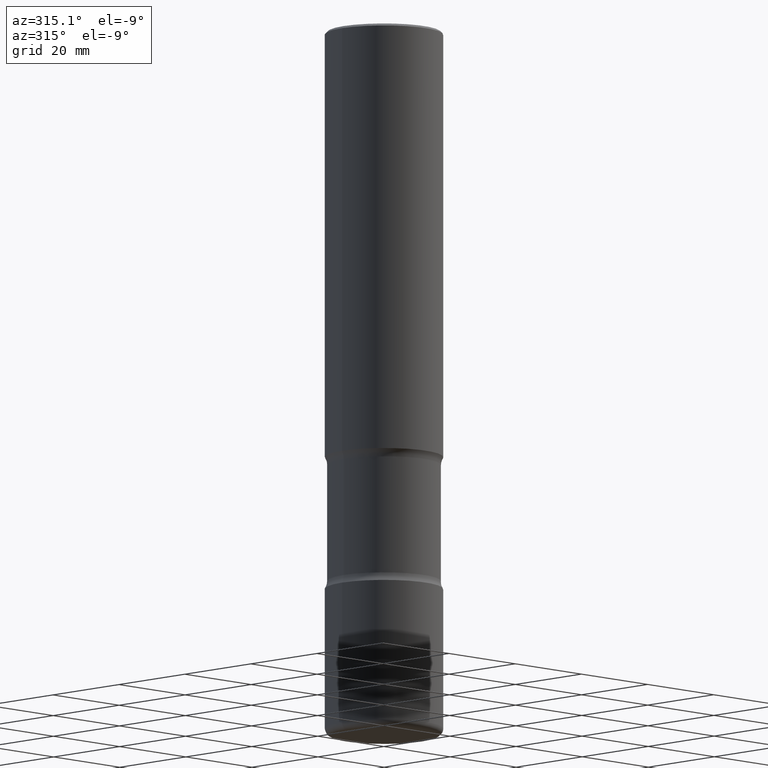
[diagram: clean part render]
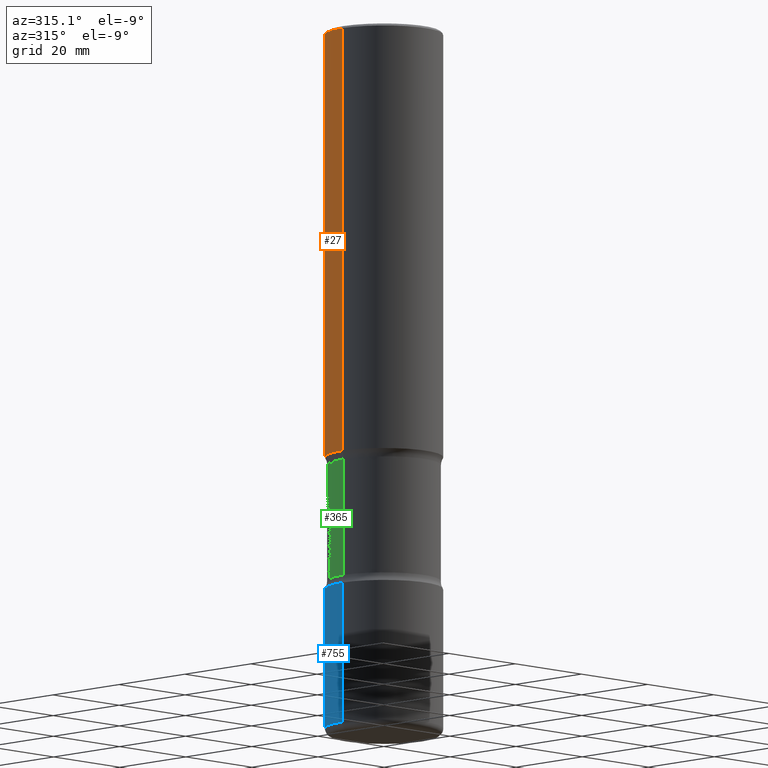
[diagram: same view with three faces highlighted in distinct colors, each labeled with its STEP entity id]
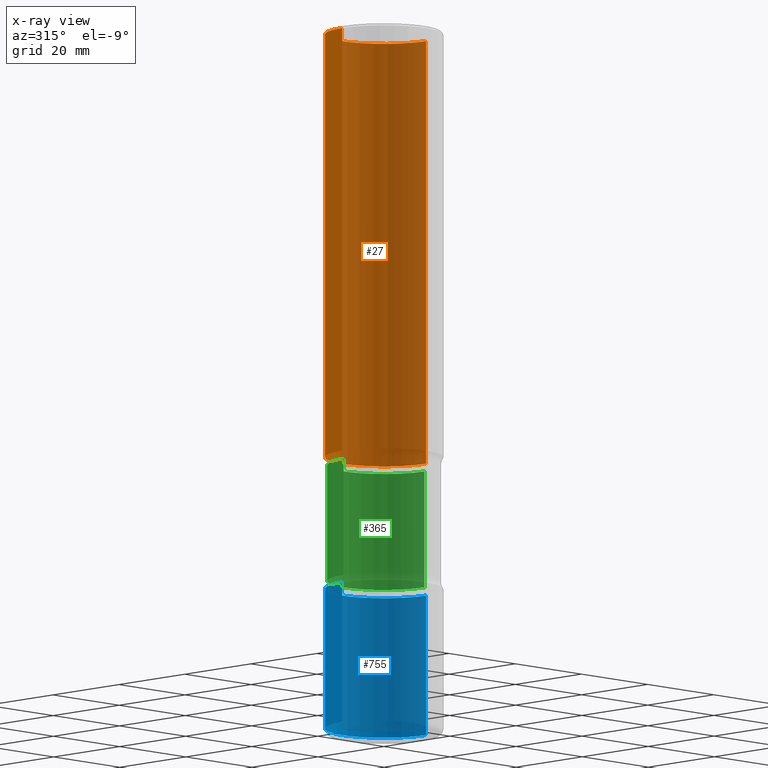
[diagram: x-ray of the same camera — body ghosted, the three highlighted faces saturated]
A machine part, auxiliary view with three faces highlighted in distinct colors.
The next image is the same camera in x-ray (body ghosted, the three faces saturated) — at least one of them is partly hidden behind the body in this view.
Their STEP definitions:

[orange] entity #27 — the highlighted cylindrical surface (partial cylindrical patch) has radius 12.7 mm, axis along (-0, 0, 1).
#27 = ADVANCED_FACE ( 'NONE', ( #154 ), #164, .T. ) ;
#55 = EDGE_CURVE ( 'NONE', #273, #332, #264, .T. ) ;
#73 = ORIENTED_EDGE ( 'NONE', *, *, #167, .T. ) ;
#74 = LINE ( 'NONE', #183, #474 ) ;
#87 = CARTESIAN_POINT ( 'NONE',  ( -0.4999999999999997224, 3.421651712066268085E-15, -0.02000000000000010797 ) ) ;
#121 = DIRECTION ( 'NONE',  ( -2.445468806185136597E-29, 3.491481338843145583E-15, 1.000000000000000000 ) ) ;
#154 = FACE_OUTER_BOUND ( 'NONE', #699, .T. ) ;
#164 = CYLINDRICAL_SURFACE ( 'NONE', #546, 0.4999999999999998335 ) ;
#167 = EDGE_CURVE ( 'NONE', #332, #224, #314, .T. ) ;
#183 = CARTESIAN_POINT ( 'NONE',  ( 0.4999999999999998335, -3.491481338843132566E-15, 2.438088387897967336E-29 ) ) ;
#218 = ORIENTED_EDGE ( 'NONE', *, *, #644, .F. ) ;
#224 = VERTEX_POINT ( 'NONE', #87 ) ;
#233 = AXIS2_PLACEMENT_3D ( 'NONE', #544, #795, #375 ) ;
#242 = CIRCLE ( 'NONE', #734, 0.4999999999999997224 ) ;
#251 = DIRECTION ( 'NONE',  ( -2.445468806185136877E-29, 3.491481338843145188E-15, 1.000000000000000000 ) ) ;
#264 = CIRCLE ( 'NONE', #233, 0.5000000000000000000 ) ;
#273 = VERTEX_POINT ( 'NONE', #708 ) ;
#285 = DIRECTION ( 'NONE',  ( -2.445468806185136597E-29, 3.491481338843145583E-15, 1.000000000000000000 ) ) ;
#307 = VECTOR ( 'NONE', #251, 39.37007874015748143 ) ;
#314 = LINE ( 'NONE', #572, #307 ) ;
#332 = VERTEX_POINT ( 'NONE', #596 ) ;
#358 = EDGE_CURVE ( 'NONE', #663, #224, #242, .T. ) ;
#375 = DIRECTION ( 'NONE',  ( 1.000000000000000000, -6.982962677686266711E-15, 0.000000000000000000 ) ) ;
#474 = VECTOR ( 'NONE', #691, 39.37007874015748143 ) ;
#486 = CARTESIAN_POINT ( 'NONE',  ( 4.890937612370299433E-31, -6.982962677686328587E-17, -0.02000000000000010797 ) ) ;
#534 = DIRECTION ( 'NONE',  ( 1.000000000000000000, -6.982962677686267499E-15, 4.876176775795936353E-29 ) ) ;
#544 = CARTESIAN_POINT ( 'NONE',  ( 8.864824422421122405E-29, -1.265661985330640574E-14, -3.625000000000000888 ) ) ;
#546 = AXIS2_PLACEMENT_3D ( 'NONE', #729, #285, #534 ) ;
#547 = DIRECTION ( 'NONE',  ( 1.000000000000000000, -6.982962677686266711E-15, 0.000000000000000000 ) ) ;
#572 = CARTESIAN_POINT ( 'NONE',  ( -0.4999999999999998335, 3.552713678800499746E-15, -2.459467545127452330E-29 ) ) ;
#596 = CARTESIAN_POINT ( 'NONE',  ( -0.5000000000000000000, -2.810511061241133592E-15, -3.625000000000000888 ) ) ;
#616 = ORIENTED_EDGE ( 'NONE', *, *, #55, .T. ) ;
#644 = EDGE_CURVE ( 'NONE', #273, #663, #74, .T. ) ;
#663 = VERTEX_POINT ( 'NONE', #700 ) ;
#691 = DIRECTION ( 'NONE',  ( -2.445468806185136877E-29, 3.491481338843145188E-15, 1.000000000000000000 ) ) ;
#699 = EDGE_LOOP ( 'NONE', ( #616, #73, #721, #218 ) ) ;
#700 = CARTESIAN_POINT ( 'NONE',  ( 0.4999999999999997224, -3.500078625662627502E-15, -0.02000000000000010797 ) ) ;
#708 = CARTESIAN_POINT ( 'NONE',  ( 0.5000000000000000000, -1.614810119214954068E-14, -3.625000000000000888 ) ) ;
#721 = ORIENTED_EDGE ( 'NONE', *, *, #358, .F. ) ;
#729 = CARTESIAN_POINT ( 'NONE',  ( 0.000000000000000000, 0.000000000000000000, 0.000000000000000000 ) ) ;
#734 = AXIS2_PLACEMENT_3D ( 'NONE', #486, #121, #547 ) ;
#795 = DIRECTION ( 'NONE',  ( -2.445468806185136597E-29, 3.491481338843145583E-15, 1.000000000000000000 ) ) ;

[blue] entity #755 — the highlighted cylindrical surface (partial cylindrical patch) has radius 12.7 mm, axis along (-0, 0, 1).
#17 = FACE_OUTER_BOUND ( 'NONE', #574, .T. ) ;
#25 = DIRECTION ( 'NONE',  ( -2.445468806185136597E-29, 3.491481338843145583E-15, 1.000000000000000000 ) ) ;
#43 = AXIS2_PLACEMENT_3D ( 'NONE', #259, #510, #65 ) ;
#60 = ORIENTED_EDGE ( 'NONE', *, *, #545, .T. ) ;
#65 = DIRECTION ( 'NONE',  ( 1.000000000000000000, -6.982962677686266711E-15, 4.876176775795935793E-29 ) ) ;
#91 = AXIS2_PLACEMENT_3D ( 'NONE', #722, #25, #142 ) ;
#94 = CARTESIAN_POINT ( 'NONE',  ( -0.5000000000000000000, 3.552713678800500929E-15, -2.459467545127452891E-29 ) ) ;
#120 = CIRCLE ( 'NONE', #528, 0.5000000000000000000 ) ;
#127 = ORIENTED_EDGE ( 'NONE', *, *, #254, .F. ) ;
#128 = CYLINDRICAL_SURFACE ( 'NONE', #43, 0.5000000000000000000 ) ;
#142 = DIRECTION ( 'NONE',  ( 1.000000000000000000, -6.982962677686266711E-15, 0.000000000000000000 ) ) ;
#168 = CARTESIAN_POINT ( 'NONE',  ( 0.5000000000000000000, -2.007601769834807675E-14, -4.750000000000000000 ) ) ;
#196 = CARTESIAN_POINT ( 'NONE',  ( 0.5000000000000000000, -3.491481338843133355E-15, 2.438088387897967896E-29 ) ) ;
#216 = EDGE_CURVE ( 'NONE', #412, #499, #444, .T. ) ;
#249 = EDGE_CURVE ( 'NONE', #316, #499, #341, .T. ) ;
#254 = EDGE_CURVE ( 'NONE', #318, #412, #599, .T. ) ;
#259 = CARTESIAN_POINT ( 'NONE',  ( 0.000000000000000000, 0.000000000000000000, 0.000000000000000000 ) ) ;
#265 = VECTOR ( 'NONE', #773, 39.37007874015748143 ) ;
#276 = VECTOR ( 'NONE', #325, 39.37007874015748143 ) ;
#288 = CARTESIAN_POINT ( 'NONE',  ( -0.5000000000000000000, -1.510925407731611217E-14, -4.750000000000000000 ) ) ;
#293 = CARTESIAN_POINT ( 'NONE',  ( 1.452608470873971255E-28, -2.073939915272828597E-14, -5.940000000000000391 ) ) ;
#316 = VERTEX_POINT ( 'NONE', #602 ) ;
#318 = VERTEX_POINT ( 'NONE', #535 ) ;
#325 = DIRECTION ( 'NONE',  ( -2.445468806185136877E-29, 3.491481338843145188E-15, 1.000000000000000000 ) ) ;
#341 = LINE ( 'NONE', #94, #276 ) ;
#344 = DIRECTION ( 'NONE',  ( 1.000000000000000000, -6.982962677686270655E-15, 0.000000000000000000 ) ) ;
#412 = VERTEX_POINT ( 'NONE', #168 ) ;
#444 = CIRCLE ( 'NONE', #91, 0.5000000000000000000 ) ;
#446 = ORIENTED_EDGE ( 'NONE', *, *, #249, .T. ) ;
#499 = VERTEX_POINT ( 'NONE', #288 ) ;
#510 = DIRECTION ( 'NONE',  ( -2.445468806185136597E-29, 3.491481338843145583E-15, 1.000000000000000000 ) ) ;
#528 = AXIS2_PLACEMENT_3D ( 'NONE', #293, #550, #344 ) ;
#529 = ORIENTED_EDGE ( 'NONE', *, *, #216, .F. ) ;
#535 = CARTESIAN_POINT ( 'NONE',  ( 0.5000000000000000000, -2.423088049157142248E-14, -5.940000000000000391 ) ) ;
#545 = EDGE_CURVE ( 'NONE', #318, #316, #120, .T. ) ;
#550 = DIRECTION ( 'NONE',  ( -2.445468806185136597E-29, 3.491481338843145583E-15, 1.000000000000000000 ) ) ;
#574 = EDGE_LOOP ( 'NONE', ( #60, #446, #529, #127 ) ) ;
#599 = LINE ( 'NONE', #196, #265 ) ;
#602 = CARTESIAN_POINT ( 'NONE',  ( -0.5000000000000000000, -1.718668547392778504E-14, -5.940000000000000391 ) ) ;
#722 = CARTESIAN_POINT ( 'NONE',  ( 1.161597682937940108E-28, -1.658453635950494339E-14, -4.750000000000000000 ) ) ;
#755 = ADVANCED_FACE ( 'NONE', ( #17 ), #128, .T. ) ;
#773 = DIRECTION ( 'NONE',  ( -2.445468806185136877E-29, 3.491481338843145188E-15, 1.000000000000000000 ) ) ;

[green] entity #365 — the highlighted cylindrical surface (partial cylindrical patch) has radius 12.192 mm, axis along (-0, 0, 1).
#18 = EDGE_CURVE ( 'NONE', #211, #139, #303, .T. ) ;
#19 = CIRCLE ( 'NONE', #605, 0.4799999999999998157 ) ;
#38 = DIRECTION ( 'NONE',  ( -2.445468806185136597E-29, 3.491481338843145583E-15, 1.000000000000000000 ) ) ;
#62 = DIRECTION ( 'NONE',  ( -2.445468806185136597E-29, 3.491481338843145583E-15, 1.000000000000000000 ) ) ;
#81 = VECTOR ( 'NONE', #796, 39.37007874015748143 ) ;
#84 = ORIENTED_EDGE ( 'NONE', *, *, #457, .F. ) ;
#102 = DIRECTION ( 'NONE',  ( 1.000000000000000000, -6.982962677686265133E-15, 0.000000000000000000 ) ) ;
#114 = CYLINDRICAL_SURFACE ( 'NONE', #672, 0.4799999999999998712 ) ;
#122 = CARTESIAN_POINT ( 'NONE',  ( -0.4799999999999999267, -1.298447506143066159E-14, -4.682176700168747985 ) ) ;
#139 = VERTEX_POINT ( 'NONE', #122 ) ;
#163 = DIRECTION ( 'NONE',  ( 1.000000000000000000, -6.982962677686265922E-15, 0.000000000000000000 ) ) ;
#186 = EDGE_LOOP ( 'NONE', ( #372, #715, #253, #84 ) ) ;
#211 = VERTEX_POINT ( 'NONE', #619 ) ;
#237 = CARTESIAN_POINT ( 'NONE',  ( 9.030684186490993510E-29, -1.289342363900598922E-14, -3.692823299831254236 ) ) ;
#248 = VERTEX_POINT ( 'NONE', #517 ) ;
#250 = DIRECTION ( 'NONE',  ( -2.445468806185136597E-29, 3.491481338843145583E-15, 1.000000000000000000 ) ) ;
#253 = ORIENTED_EDGE ( 'NONE', *, *, #611, .F. ) ;
#303 = CIRCLE ( 'NONE', #489, 0.4799999999999999267 ) ;
#304 = CARTESIAN_POINT ( 'NONE',  ( -0.4799999999999998712, -9.246014721657926556E-15, -3.625000000000000888 ) ) ;
#335 = EDGE_CURVE ( 'NONE', #139, #455, #543, .T. ) ;
#365 = ADVANCED_FACE ( 'NONE', ( #736 ), #114, .T. ) ;
#372 = ORIENTED_EDGE ( 'NONE', *, *, #18, .T. ) ;
#386 = DIRECTION ( 'NONE',  ( 1.000000000000000000, -6.982962677686266711E-15, 0.000000000000000000 ) ) ;
#417 = CARTESIAN_POINT ( 'NONE',  ( 8.864824422421122405E-29, -1.265661985330640574E-14, -3.625000000000000888 ) ) ;
#455 = VERTEX_POINT ( 'NONE', #480 ) ;
#457 = EDGE_CURVE ( 'NONE', #211, #248, #496, .T. ) ;
#480 = CARTESIAN_POINT ( 'NONE',  ( -0.4799999999999998157, -9.293362340931705846E-15, -3.692823299831254236 ) ) ;
#489 = AXIS2_PLACEMENT_3D ( 'NONE', #724, #38, #102 ) ;
#496 = LINE ( 'NONE', #751, #81 ) ;
#517 = CARTESIAN_POINT ( 'NONE',  ( 0.4799999999999998157, -1.624524572429539598E-14, -3.692823299831254236 ) ) ;
#543 = LINE ( 'NONE', #304, #552 ) ;
#552 = VECTOR ( 'NONE', #615, 39.37007874015748143 ) ;
#605 = AXIS2_PLACEMENT_3D ( 'NONE', #237, #250, #386 ) ;
#611 = EDGE_CURVE ( 'NONE', #248, #455, #19, .T. ) ;
#615 = DIRECTION ( 'NONE',  ( -2.445468806185136877E-29, 3.491481338843145188E-15, 1.000000000000000000 ) ) ;
#619 = CARTESIAN_POINT ( 'NONE',  ( 0.4799999999999999267, -1.969955465909476825E-14, -4.682176700168747985 ) ) ;
#672 = AXIS2_PLACEMENT_3D ( 'NONE', #417, #62, #163 ) ;
#715 = ORIENTED_EDGE ( 'NONE', *, *, #335, .T. ) ;
#724 = CARTESIAN_POINT ( 'NONE',  ( 1.145011706530952997E-28, -1.634773257380536149E-14, -4.682176700168747985 ) ) ;
#736 = FACE_OUTER_BOUND ( 'NONE', #186, .T. ) ;
#751 = CARTESIAN_POINT ( 'NONE',  ( 0.4799999999999998712, -1.600844193859581408E-14, -3.625000000000000888 ) ) ;
#796 = DIRECTION ( 'NONE',  ( -2.445468806185136877E-29, 3.491481338843145188E-15, 1.000000000000000000 ) ) ;